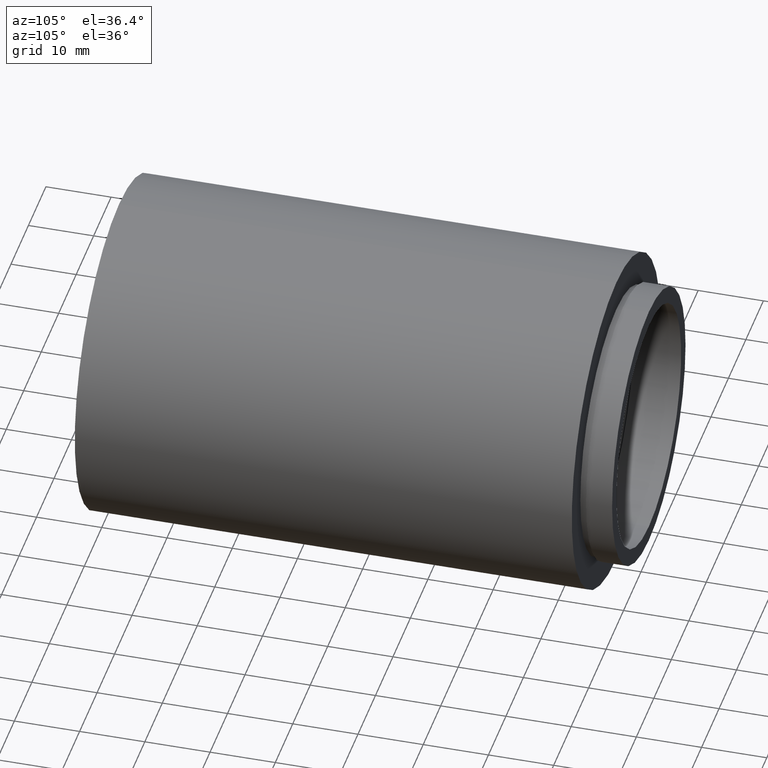
[diagram: clean part render]
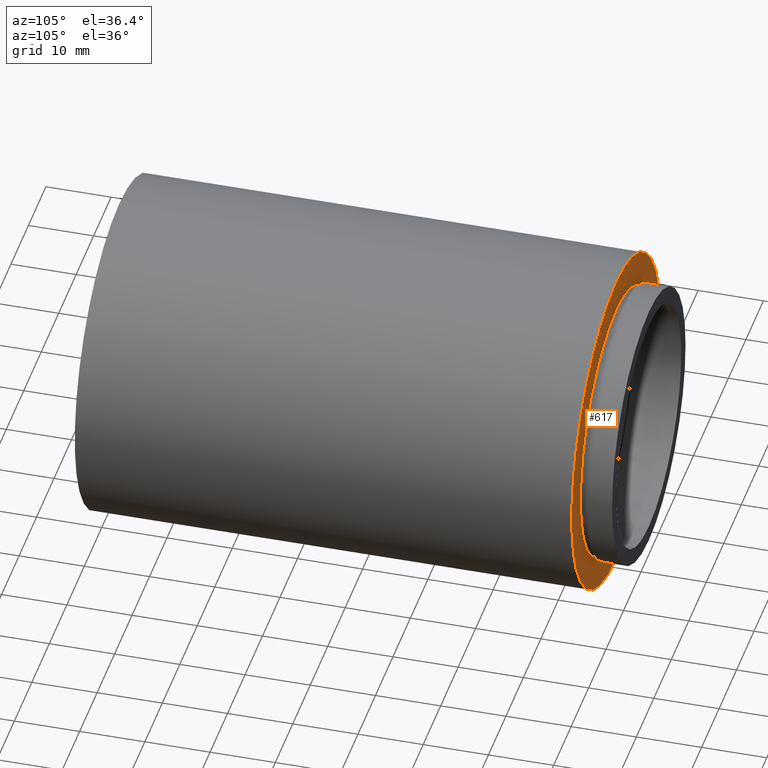
[diagram: same view with one face highlighted and labeled with its STEP entity id]
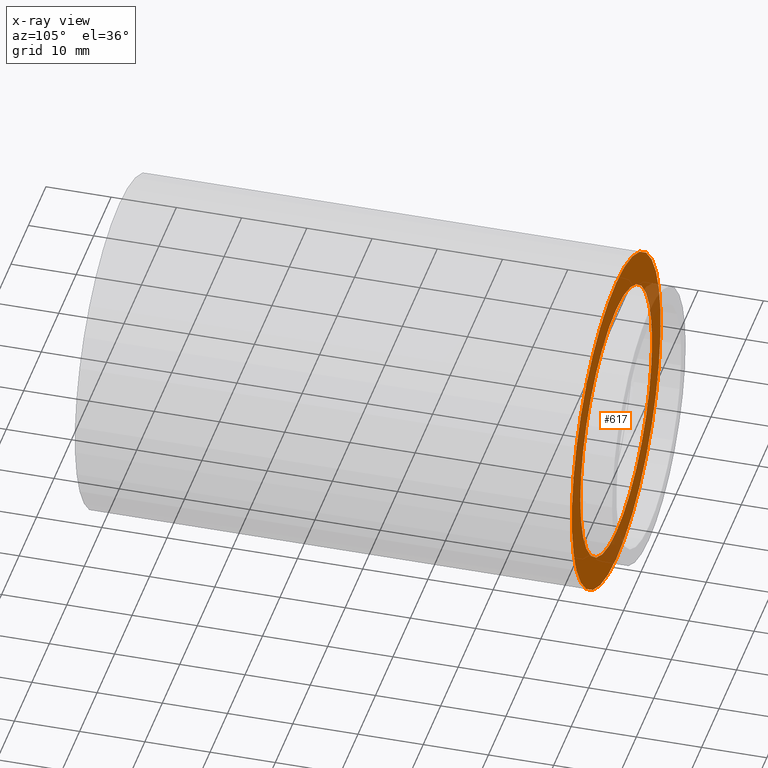
[diagram: x-ray of the same camera — body ghosted, the highlighted face saturated]
A machine part, auxiliary view. The second image highlights one B-rep face of the part: STEP entity #617.
The next image is the same camera in x-ray: the body ghosted, the highlighted face saturated — about 11% of this face is hidden behind the body in this view.
In plain terms, the highlighted planar face has unit normal (0, -1, 0).
Its self-contained STEP definition (entity closure, byte-faithful):
#7 = FACE_BOUND ( 'NONE', #584, .T. ) ;
#33 = DIRECTION ( 'NONE',  ( 0.0000000000000000000, -0.0000000000000000000, -1.000000000000000000 ) ) ;
#38 = VERTEX_POINT ( 'NONE', #540 ) ;
#78 = DIRECTION ( 'NONE',  ( 0.0000000000000000000, 0.0000000000000000000, 1.000000000000000000 ) ) ;
#95 = CARTESIAN_POINT ( 'NONE',  ( 0.0000000000000000000, 76.19999999999998900, 0.0000000000000000000 ) ) ;
#119 = CARTESIAN_POINT ( 'NONE',  ( 0.0000000000000000000, 76.19999999999998900, 0.0000000000000000000 ) ) ;
#131 = ORIENTED_EDGE ( 'NONE', *, *, #484, .T. ) ;
#135 = DIRECTION ( 'NONE',  ( 0.0000000000000000000, -1.000000000000000000, 0.0000000000000000000 ) ) ;
#189 = DIRECTION ( 'NONE',  ( 0.0000000000000000000, 0.0000000000000000000, 1.000000000000000000 ) ) ;
#215 = EDGE_CURVE ( 'NONE', #38, #608, #323, .T. ) ;
#222 = CARTESIAN_POINT ( 'NONE',  ( 0.0000000000000000000, 76.19999999999998900, 0.0000000000000000000 ) ) ;
#233 = FACE_OUTER_BOUND ( 'NONE', #414, .T. ) ;
#234 = CARTESIAN_POINT ( 'NONE',  ( 20.50000000000001100, 76.19999999999998900, 0.0000000000000000000 ) ) ;
#297 = VERTEX_POINT ( 'NONE', #330 ) ;
#323 = CIRCLE ( 'NONE', #382, 20.50000000000001100 ) ;
#330 = CARTESIAN_POINT ( 'NONE',  ( 3.110602869834278000E-015, 76.19999999999998900, -25.40000000000000900 ) ) ;
#343 = AXIS2_PLACEMENT_3D ( 'NONE', #222, #408, #78 ) ;
#347 = ORIENTED_EDGE ( 'NONE', *, *, #215, .F. ) ;
#350 = CIRCLE ( 'NONE', #456, 25.40000000000000900 ) ;
#353 = ORIENTED_EDGE ( 'NONE', *, *, #394, .T. ) ;
#374 = EDGE_CURVE ( 'NONE', #608, #38, #495, .T. ) ;
#382 = AXIS2_PLACEMENT_3D ( 'NONE', #119, #503, #400 ) ;
#393 = CIRCLE ( 'NONE', #343, 25.40000000000000900 ) ;
#394 = EDGE_CURVE ( 'NONE', #528, #297, #350, .T. ) ;
#400 = DIRECTION ( 'NONE',  ( 0.0000000000000000000, 0.0000000000000000000, 1.000000000000000000 ) ) ;
#404 = CARTESIAN_POINT ( 'NONE',  ( 0.0000000000000000000, 76.19999999999998900, 25.40000000000000900 ) ) ;
#408 = DIRECTION ( 'NONE',  ( -0.0000000000000000000, 1.000000000000000000, -0.0000000000000000000 ) ) ;
#414 = EDGE_LOOP ( 'NONE', ( #353, #131 ) ) ;
#456 = AXIS2_PLACEMENT_3D ( 'NONE', #95, #533, #189 ) ;
#484 = EDGE_CURVE ( 'NONE', #297, #528, #393, .T. ) ;
#493 = AXIS2_PLACEMENT_3D ( 'NONE', #571, #576, #623 ) ;
#495 = CIRCLE ( 'NONE', #493, 20.50000000000001100 ) ;
#503 = DIRECTION ( 'NONE',  ( -0.0000000000000000000, 1.000000000000000000, -0.0000000000000000000 ) ) ;
#528 = VERTEX_POINT ( 'NONE', #404 ) ;
#533 = DIRECTION ( 'NONE',  ( -0.0000000000000000000, 1.000000000000000000, -0.0000000000000000000 ) ) ;
#540 = CARTESIAN_POINT ( 'NONE',  ( 0.0000000000000000000, 76.19999999999998900, 20.50000000000001100 ) ) ;
#548 = ORIENTED_EDGE ( 'NONE', *, *, #374, .F. ) ;
#556 = AXIS2_PLACEMENT_3D ( 'NONE', #234, #135, #33 ) ;
#564 = PLANE ( 'NONE',  #556 ) ;
#571 = CARTESIAN_POINT ( 'NONE',  ( 0.0000000000000000000, 76.19999999999998900, 0.0000000000000000000 ) ) ;
#576 = DIRECTION ( 'NONE',  ( -0.0000000000000000000, 1.000000000000000000, -0.0000000000000000000 ) ) ;
#584 = EDGE_LOOP ( 'NONE', ( #347, #548 ) ) ;
#607 = CARTESIAN_POINT ( 'NONE',  ( 2.510525938252075300E-015, 76.19999999999998900, -20.50000000000001100 ) ) ;
#608 = VERTEX_POINT ( 'NONE', #607 ) ;
#617 = ADVANCED_FACE ( 'NONE', ( #7, #233 ), #564, .F. ) ;
#623 = DIRECTION ( 'NONE',  ( 0.0000000000000000000, 0.0000000000000000000, 1.000000000000000000 ) ) ;